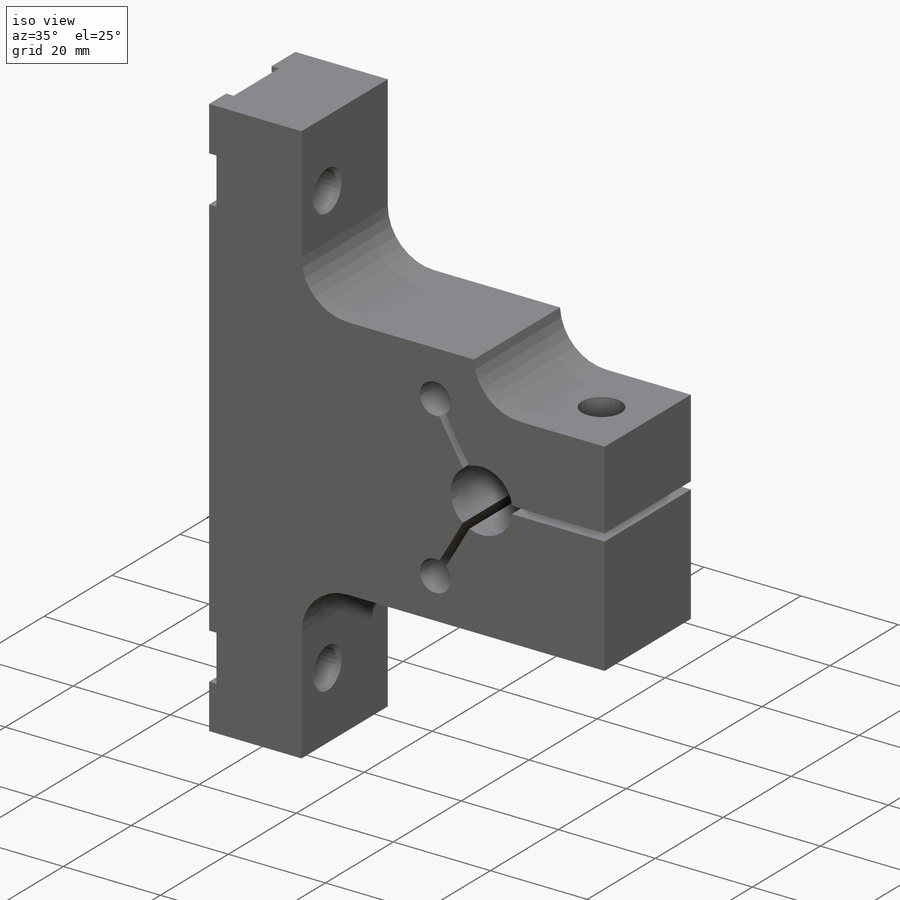
[diagram: iso view]
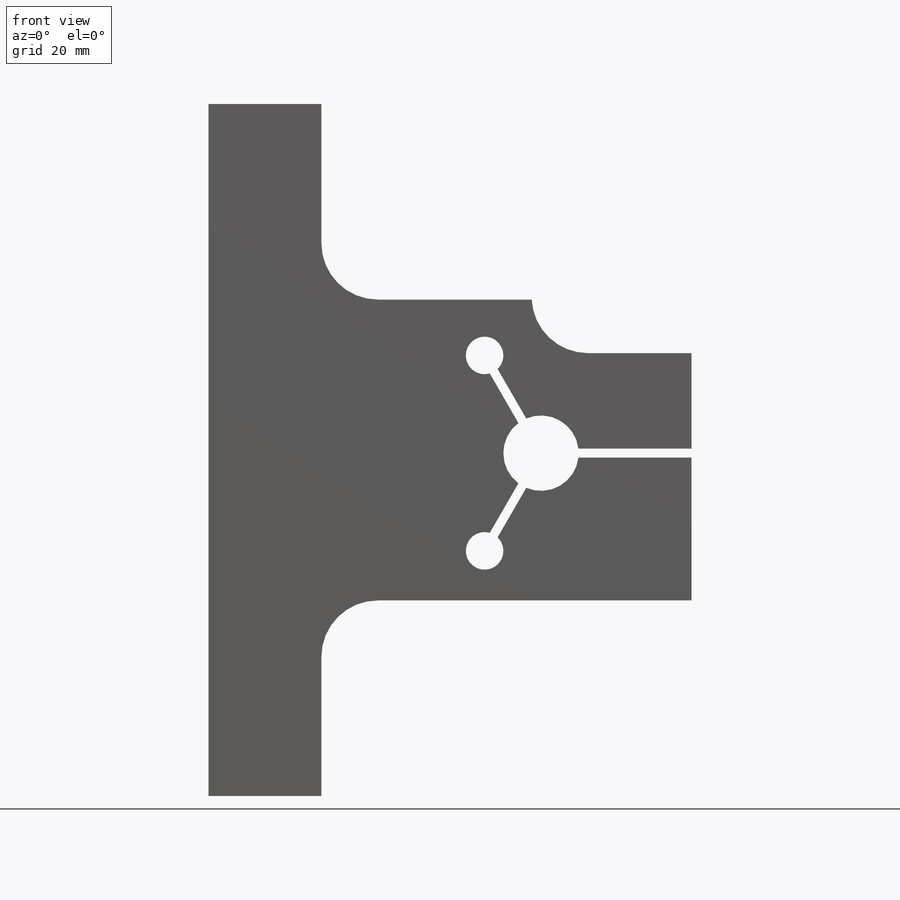
[diagram: front view]
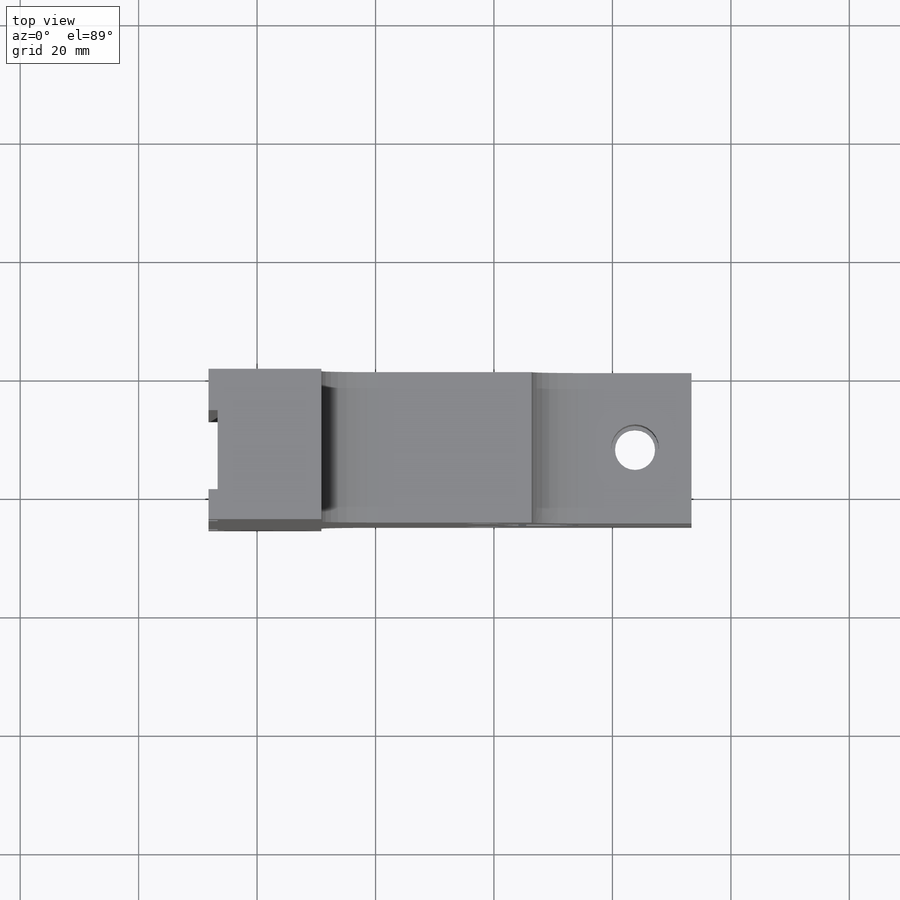
[diagram: top view]
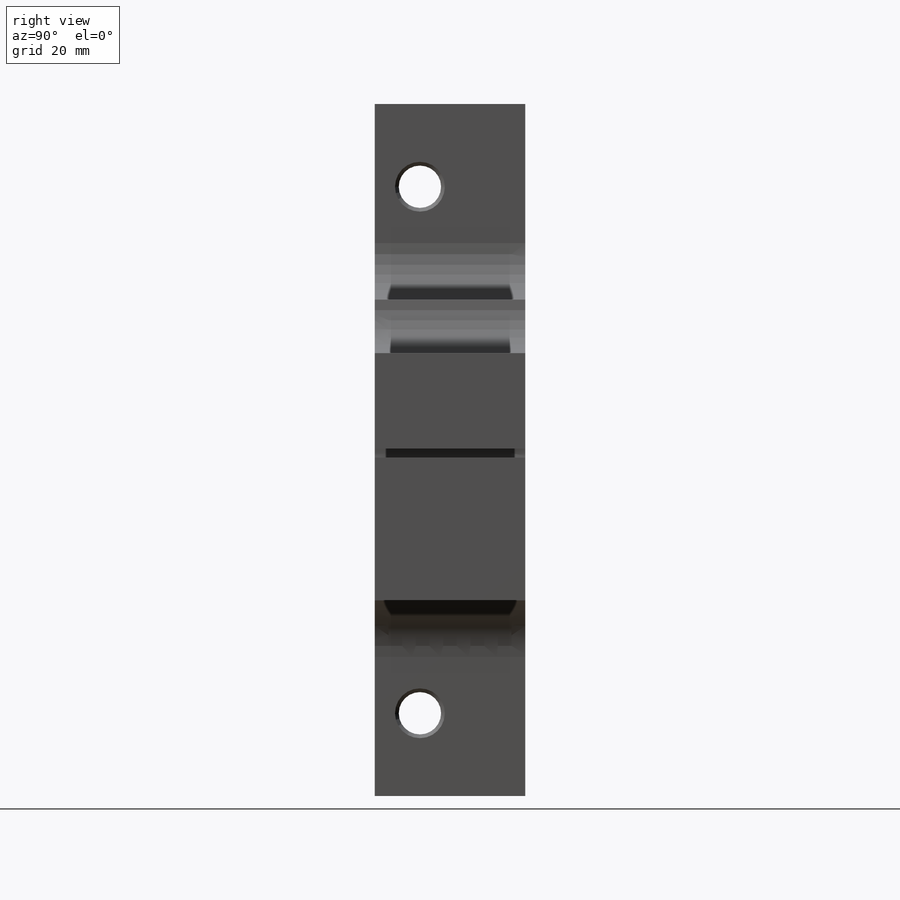
[diagram: right view]
SOLIDWORKS PART (.sldprt)
format: sldprt  version: not decoded by parser v0  size: 1,035,776 bytes
history: native  units: mm
features: sketch x17, extrude x4, hole x4, cut_extrude x4, chamfer x2, material x1, fillet x1 (+14 scaffold rows collapsed)
feature tree (47):
  scaffold x14  (default folders/planes/origin — collapsed)
  material  "6061-T6 Al"
  sketch  "Sketch1"  dims[c1.D1=210.82mm c1.D2=88.9mm c1.D3=8.89mm c1.D4=2.54mm c2.D1=50.8mm]
  extrude  "Extrude1"  Depth=25.4mm
  sketch  "Sketch22"
  extrude  "Extrude7"  Depth=50.8mm
  sketch  "Sketch24"  dims[D1=12.7254mm D2=25.4mm D3=24.8666mm]
  sketch  "Sketch30"  dims[c1.D1=~112.067137mm c1.D2=~19.223992mm c2.D1=81.534mm c2.D2=116.84mm c2.D3=50.8mm c3.D3=90.0deg c4.D3=19.05mm c4.D4=83.82mm]
  extrude  "Extrude9"  [1 undecoded]
  sketch  "Sketch36"  dims[D1=50.8mm D2=9.144mm]
  extrude  "Extrude12"  [1 undecoded]
  hole  "1/4 Clearance Hole1"  Diameter=7.14248mm Depth=20.574mm
  sketch  "Sketch32"  dims[D1=5.08mm D2=88.9mm D3=19.05mm D4=44.45mm D5=4.445mm]
  sketch  "Sketch31"  dims[hole-wizard template sketch: 39 standard entries collapsed; hole parameters kept: c13.Hole Dia.=~7.14248mm c13.Hole Depth=20.574mm c13.Near C'Sink Dia.=~8.41248mm c13.D4=~33.297463mm c13.Near C'Sink Angle=90.0deg c14.D5=~14.816244mm c14.Drill Angle=118.0deg]
  cut_extrude  "Extrude13"  [1 undecoded]
  sketch  "Sketch37"  dims[c1.D3=6.35mm c1.D8=~2.914348mm c1.D1=~21.162925mm c2.D1=120.0deg c2.D2=19.05mm c2.D8=~14.748839mm c3.D8=120.0deg c3.D11=27.94mm c3.D4=1.524mm c3.D5=1.524mm c3.D7=0.762mm c3.D9=1.524mm c3.D10=0.762mm c4.D4=0.762mm c4.D5=0.762mm c4.D6=0.762mm c4.D7=0.762mm c4.D9=0.762mm c4.D10=0.762mm]
  cut_extrude  "Extrude14"  [1 undecoded]
  sketch  "Sketch46"  dims[c1.D1=12.319mm c1.D2=~13.28275mm c2.D1=26.9748mm c2.D2=9.0424mm]
  cut_extrude  "Extrude16"  [1 undecoded]
  fillet  "Fillet4"  Radius=9.525mm
  hole  "19/64 (0.29688) Diameter Hole1"  Diameter=7.540752mm Depth=24.1046mm
  sketch  "Sketch39"  dims[D1=9.525mm D2=~11.867253mm]
  sketch  "Sketch38"  dims[hole-wizard template sketch: 59 standard entries collapsed; hole parameters kept: c18.Thru Hole Dia.=~7.540752mm c18.Thru Hole Depth=24.1046mm]
  hole  "Tapped Hole for 1/4-20 Helicoil1"  Diameter=6.7564mm Depth=74.7776mm
  sketch  "Sketch41"
  sketch  "Sketch40"  dims[hole-wizard template sketch: 42 standard entries collapsed; hole parameters kept: c12.Thru Tap Drill Depth=74.7776mm c12.Thread Major Dia.=~8.09498mm c12.Thread Depth=15.748mm]
  sketch  "Sketch45"  dims[c1.D1=~66.36717mm c1.D2=25.4mm c2.D1=116.84mm c2.D2=~14.819193mm c3.D1=13.335mm c3.D2=~12.089187mm c3.D3=~4.04876mm c4.D2=~10.36216mm c4.D3=~4.04876mm c5.D2=9.525mm c5.D3=9.525mm c5.D4=4.7625mm c5.D5=4.7625mm c5.D6=2.54mm]
  cut_extrude  "Extrude15"  Depth=1.524mm
  chamfer  "Chamfer7"  Distance=1.27mm Angle=45deg
  chamfer  "Chamfer8"  Distance=1.27mm Angle=45deg
  hole  "CBORE for #4 Socket Head Cap Screw1"  Diameter=3.175mm Depth=6.35mm
  sketch  "Sketch49"  dims[D1=8.255mm]
  sketch  "Sketch48"  dims[hole-wizard template sketch: 34 standard entries collapsed; hole parameters kept: c8.Drill Angle=90.0deg]
  sketch  "Sketch50"  dims[D1=0.0mm]
decode coverage: 25 of 32 modeling features carry decoded parameters
note: ~ marks probable driven/reference dimensions
note: 5 parameter values undecoded
summary: no parameter record found for 5 features; Diameter pulled from absorbed wizard sketch
note: suppression state not decoded; provenance and decode notes live in map.json
